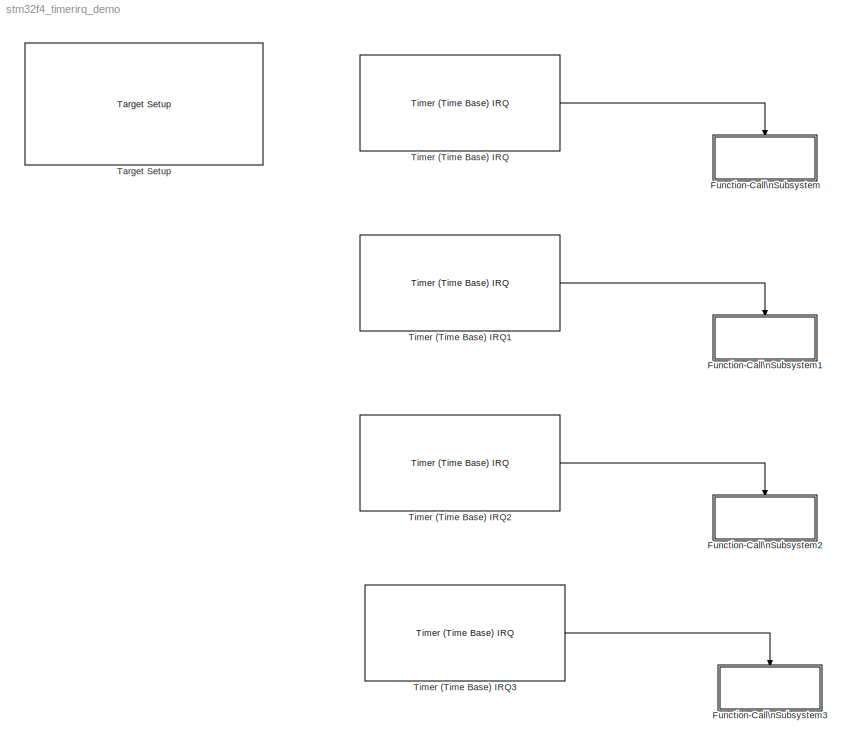
MODEL stm32f4_timerirq_demo
KIND model
CONFIG PreLoadFcn = waijung.modelPreload; % Required for working with Waijung Blockset. Do not remove.
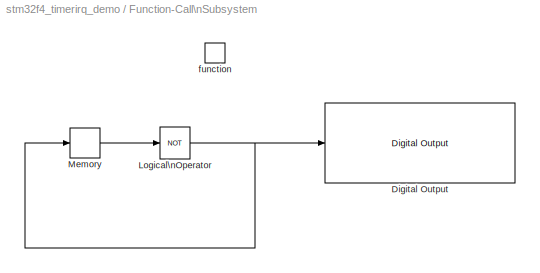
BLOCK [SubSystem] Function-Call\nSubsystem
  FunctionWithSeparateData = off
  MaskHideContents = off
  MinAlgLoopOccurrences = off
  Opaque = off
  Ports = [0, 0, 0, 1]
  PropExecContextOutsideSubsystem = off
  RTWSystemCode = Auto
  RequestExecContextInheritance = off
  TreatAsAtomicUnit = on
BLOCK [Reference] Function-Call\nSubsystem/Digital Output  REF=stm32f4_io_lib/Digital Output
  Ports = [1]
  SourceBlock = stm32f4_io_lib/Digital Output
  SourceType = stm32f4_digital_output
  bitbandingstr = \n#define FunctionCallSubsystemDigitalOutput_D12 Peripheral_BB(GPIOD->ODR, 12)  /* Output pin */
  blockid = FunctionCallSubsystemDigitalOutput
  cinputportlabel = In1, In2
  coutputportlabel = 0
  enablecustomportlabel = off
  globalinit = off
  pinstr = GPIO_Pin_12
  port = D
  porttype = Push Pull
  porttypestr = PP
  sampletime = -1
  sampletimestr = -1
  speed = 100
  use_bitband = on
  use_pin0 = off
  use_pin1 = off
  use_pin10 = off
  use_pin11 = off
  use_pin12 = on
  use_pin13 = off
  use_pin14 = off
  use_pin15 = off
  use_pin2 = off
  use_pin3 = off
  use_pin4 = off
  use_pin5 = off
  use_pin6 = off
  use_pin7 = off
  use_pin8 = off
  use_pin9 = off
  usedpinarray = [0  0  0  0  0  0  0  0  0  0  0  0  1  0  0  0]
BLOCK [Logic] Function-Call\nSubsystem/Logical\nOperator
  AllPortsSameDT = off
  LogicDataType = fixdt(0, 8)
  Operator = NOT
  OutDataTypeMode = boolean
  OutDataTypeStr = boolean
  Ports = [1, 1]
BLOCK [Memory] Function-Call\nSubsystem/Memory
  InheritSampleTime = on
BLOCK [TriggerPort] Function-Call\nSubsystem/function
  Ports = []
  StatesWhenEnabling = held
  TriggerType = function-call
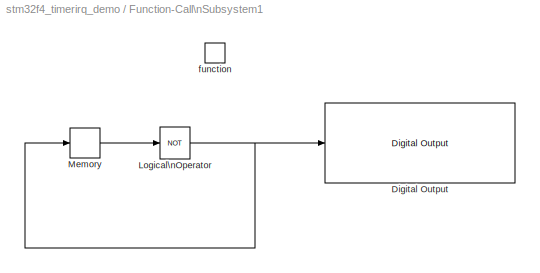
BLOCK [SubSystem] Function-Call\nSubsystem1
  FunctionWithSeparateData = off
  MaskHideContents = off
  MinAlgLoopOccurrences = off
  Opaque = off
  Ports = [0, 0, 0, 1]
  PropExecContextOutsideSubsystem = off
  RTWSystemCode = Auto
  RequestExecContextInheritance = off
  TreatAsAtomicUnit = on
BLOCK [Reference] Function-Call\nSubsystem1/Digital Output  REF=stm32f4_io_lib/Digital Output
  Ports = [1]
  SourceBlock = stm32f4_io_lib/Digital Output
  SourceType = stm32f4_digital_output
  bitbandingstr = \n#define FunctionCallSubsystem1DigitalOutput_D13 Peripheral_BB(GPIOD->ODR, 13)  /* Output pin */
  blockid = FunctionCallSubsystem1DigitalOutput
  cinputportlabel = In1, In2
  coutputportlabel = 0
  enablecustomportlabel = off
  globalinit = off
  pinstr = GPIO_Pin_13
  port = D
  porttype = Push Pull
  porttypestr = PP
  sampletime = -1
  sampletimestr = -1
  speed = 100
  use_bitband = on
  use_pin0 = off
  use_pin1 = off
  use_pin10 = off
  use_pin11 = off
  use_pin12 = off
  use_pin13 = on
  use_pin14 = off
  use_pin15 = off
  use_pin2 = off
  use_pin3 = off
  use_pin4 = off
  use_pin5 = off
  use_pin6 = off
  use_pin7 = off
  use_pin8 = off
  use_pin9 = off
  usedpinarray = [0  0  0  0  0  0  0  0  0  0  0  0  0  1  0  0]
BLOCK [Logic] Function-Call\nSubsystem1/Logical\nOperator
  AllPortsSameDT = off
  LogicDataType = fixdt(0, 8)
  Operator = NOT
  OutDataTypeMode = boolean
  OutDataTypeStr = boolean
  Ports = [1, 1]
BLOCK [Memory] Function-Call\nSubsystem1/Memory
  InheritSampleTime = on
BLOCK [TriggerPort] Function-Call\nSubsystem1/function
  Ports = []
  StatesWhenEnabling = held
  TriggerType = function-call
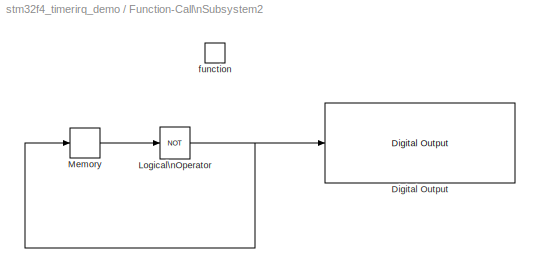
BLOCK [SubSystem] Function-Call\nSubsystem2
  FunctionWithSeparateData = off
  MaskHideContents = off
  MinAlgLoopOccurrences = off
  Opaque = off
  Ports = [0, 0, 0, 1]
  PropExecContextOutsideSubsystem = off
  RTWSystemCode = Auto
  RequestExecContextInheritance = off
  TreatAsAtomicUnit = on
BLOCK [Reference] Function-Call\nSubsystem2/Digital Output  REF=stm32f4_io_lib/Digital Output
  Ports = [1]
  SourceBlock = stm32f4_io_lib/Digital Output
  SourceType = stm32f4_digital_output
  bitbandingstr = \n#define FunctionCallSubsystem2DigitalOutput_D14 Peripheral_BB(GPIOD->ODR, 14)  /* Output pin */
  blockid = FunctionCallSubsystem2DigitalOutput
  cinputportlabel = In1, In2
  coutputportlabel = 0
  enablecustomportlabel = off
  globalinit = off
  pinstr = GPIO_Pin_14
  port = D
  porttype = Push Pull
  porttypestr = PP
  sampletime = -1
  sampletimestr = -1
  speed = 100
  use_bitband = on
  use_pin0 = off
  use_pin1 = off
  use_pin10 = off
  use_pin11 = off
  use_pin12 = off
  use_pin13 = off
  use_pin14 = on
  use_pin15 = off
  use_pin2 = off
  use_pin3 = off
  use_pin4 = off
  use_pin5 = off
  use_pin6 = off
  use_pin7 = off
  use_pin8 = off
  use_pin9 = off
  usedpinarray = [0  0  0  0  0  0  0  0  0  0  0  0  0  0  1  0]
BLOCK [Logic] Function-Call\nSubsystem2/Logical\nOperator
  AllPortsSameDT = off
  LogicDataType = fixdt(0, 8)
  Operator = NOT
  OutDataTypeMode = boolean
  OutDataTypeStr = boolean
  Ports = [1, 1]
BLOCK [Memory] Function-Call\nSubsystem2/Memory
  InheritSampleTime = on
BLOCK [TriggerPort] Function-Call\nSubsystem2/function
  Ports = []
  StatesWhenEnabling = held
  TriggerType = function-call
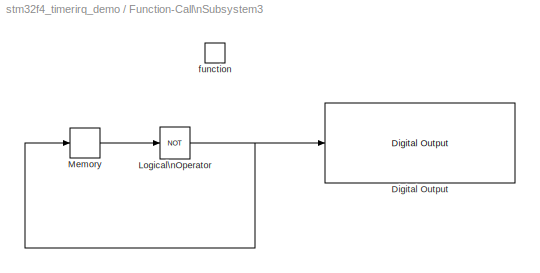
BLOCK [SubSystem] Function-Call\nSubsystem3
  FunctionWithSeparateData = off
  MaskHideContents = off
  MinAlgLoopOccurrences = off
  Opaque = off
  Ports = [0, 0, 0, 1]
  PropExecContextOutsideSubsystem = off
  RTWSystemCode = Auto
  RequestExecContextInheritance = off
  TreatAsAtomicUnit = on
BLOCK [Reference] Function-Call\nSubsystem3/Digital Output  REF=stm32f4_io_lib/Digital Output
  Ports = [1]
  SourceBlock = stm32f4_io_lib/Digital Output
  SourceType = stm32f4_digital_output
  bitbandingstr = \n#define FunctionCallSubsystem3DigitalOutput_D15 Peripheral_BB(GPIOD->ODR, 15)  /* Output pin */
  blockid = FunctionCallSubsystem3DigitalOutput
  cinputportlabel = In1, In2
  coutputportlabel = 0
  enablecustomportlabel = off
  globalinit = off
  pinstr = GPIO_Pin_15
  port = D
  porttype = Push Pull
  porttypestr = PP
  sampletime = -1
  sampletimestr = -1
  speed = 100
  use_bitband = on
  use_pin0 = off
  use_pin1 = off
  use_pin10 = off
  use_pin11 = off
  use_pin12 = off
  use_pin13 = off
  use_pin14 = off
  use_pin15 = on
  use_pin2 = off
  use_pin3 = off
  use_pin4 = off
  use_pin5 = off
  use_pin6 = off
  use_pin7 = off
  use_pin8 = off
  use_pin9 = off
  usedpinarray = [0  0  0  0  0  0  0  0  0  0  0  0  0  0  0  1]
BLOCK [Logic] Function-Call\nSubsystem3/Logical\nOperator
  AllPortsSameDT = off
  LogicDataType = fixdt(0, 8)
  Operator = NOT
  OutDataTypeMode = boolean
  OutDataTypeStr = boolean
  Ports = [1, 1]
BLOCK [Memory] Function-Call\nSubsystem3/Memory
  InheritSampleTime = on
BLOCK [TriggerPort] Function-Call\nSubsystem3/function
  Ports = []
  StatesWhenEnabling = held
  TriggerType = function-call
BLOCK [Reference] Target Setup  REF=stm32f4_device_config_lib/Target Setup
  Ports = []
  Priority = 100
  SourceBlock = stm32f4_device_config_lib/Target Setup
  SourceType = stm32f4_target_setup
  assemblercontrolstr = $(patsubst %, -I%, .) -mcpu=cortex-m4 -mthumb -mthumb-interwork -mfloat-abi=hard -mfpu=fpv4-sp-d16 -ffast-math -Wall -Wextra -Ofast -Wa,-amhls=$(<:.s=.lst) -D__STACK_SIZE=$(STACK_SIZE) -D__HEAP_SIZE=$(HEAP_SIZE)
  blockid = TargetSetup
  clockconfig = HSEOSC-8MHz
  compiler = GNU ARM
  compilercontrolstr = $(patsubst %, -I%, .) -mcpu=cortex-m4 -mthumb -mthumb-interwork -mfloat-abi=hard -mfpu=fpv4-sp-d16 -ffast-math -Wall -Wextra -Ofast
  editctrlstr = on
  enableautocompiledownload = on
  execprofile = None
  flashlength = 1024k
  flashorigin = 0x8000000
  fullchiperase = off
  hclk = 168000000
  heapsize = 0x200
  hseval = 8000000
  lastprofileruart = 1
  linkercontrolstr = -T$(LD_SCRIPT) -g -Wl,-Map=$(MAP),--cref,--no-warn-mismatch -mcpu=cortex-m4 -mthumb -mthumb-interwork -mfloat-abi=hard -mfpu=fpv4-sp-d16 -specs=nosys.specs
  manualsetsampletime = off
  mcu = STM32F417IG (LQFP176)
  mcustr = STM32F417IG
  previous_compiler = GNU ARM
  profilerbaud = 115200
  profilerinitstr = 0.01,168000000,1680000,115200,0
  profilertxpin = D8
  profileruart = 1
  programmerinterface = ST-Link
  ramlength = 128k
  ramorigin = 0x20000000
  runafterdownload = on
  sampletime = 0.01
  showmemoryconfiguration = off
  stacksize = 0x400
  system_stm32f4xx_c_path = <path>
  systickreloadvalue = 1680000
  useextram = off
BLOCK [Reference] Timer (Time Base) IRQ  REF=stm32f4_tim_lib/Timer (Time Base) IRQ
  Ports = [0, 1]
  SourceBlock = stm32f4_tim_lib/Timer (Time Base) IRQ
  SourceType = stm32f4_bttbisr
  autoreload = 65521
  blockid = TimerTimeBaseIRQ
  configmode = Basic
  irqpreemptionpriority = 0
  irqpreemptionpriority_g0 = 0
  irqpreemptionpriority_g1 = 0
  irqpreemptionpriority_g2 = 0
  irqpreemptionpriority_g3 = 4
  irqpreemptionpriority_g4 = 0
  irqsubpriority = 0
  irqsubpriority_g0 = 0
  irqsubpriority_g1 = 0
  irqsubpriority_g2 = 0
  irqsubpriority_g3 = 0
  irqsubpriority_g4 = 0
  nvicprioritygroup = 4
  prescaler = 1281
  sampletime = 1
  timer = 2
BLOCK [Reference] Timer (Time Base) IRQ1  REF=stm32f4_tim_lib/Timer (Time Base) IRQ
  Ports = [0, 1]
  SourceBlock = stm32f4_tim_lib/Timer (Time Base) IRQ
  SourceType = stm32f4_bttbisr
  autoreload = 65521
  blockid = TimerTimeBaseIRQ1
  configmode = Basic
  irqpreemptionpriority = 0
  irqpreemptionpriority_g0 = 0
  irqpreemptionpriority_g1 = 0
  irqpreemptionpriority_g2 = 0
  irqpreemptionpriority_g3 = 4
  irqpreemptionpriority_g4 = 0
  irqsubpriority = 0
  irqsubpriority_g0 = 0
  irqsubpriority_g1 = 0
  irqsubpriority_g2 = 0
  irqsubpriority_g3 = 0
  irqsubpriority_g4 = 0
  nvicprioritygroup = 4
  prescaler = 2563
  sampletime = 2
  timer = 3
BLOCK [Reference] Timer (Time Base) IRQ2  REF=stm32f4_tim_lib/Timer (Time Base) IRQ
  Ports = [0, 1]
  SourceBlock = stm32f4_tim_lib/Timer (Time Base) IRQ
  SourceType = stm32f4_bttbisr
  autoreload = 65521
  blockid = TimerTimeBaseIRQ2
  configmode = Basic
  irqpreemptionpriority = 0
  irqpreemptionpriority_g0 = 0
  irqpreemptionpriority_g1 = 0
  irqpreemptionpriority_g2 = 0
  irqpreemptionpriority_g3 = 4
  irqpreemptionpriority_g4 = 0
  irqsubpriority = 0
  irqsubpriority_g0 = 0
  irqsubpriority_g1 = 0
  irqsubpriority_g2 = 0
  irqsubpriority_g3 = 0
  irqsubpriority_g4 = 0
  nvicprioritygroup = 4
  prescaler = 3845
  sampletime = 3
  timer = 4
BLOCK [Reference] Timer (Time Base) IRQ3  REF=stm32f4_tim_lib/Timer (Time Base) IRQ
  Ports = [0, 1]
  SourceBlock = stm32f4_tim_lib/Timer (Time Base) IRQ
  SourceType = stm32f4_bttbisr
  autoreload = 65534
  blockid = TimerTimeBaseIRQ3
  configmode = Basic
  irqpreemptionpriority = 0
  irqpreemptionpriority_g0 = 0
  irqpreemptionpriority_g1 = 0
  irqpreemptionpriority_g2 = 0
  irqpreemptionpriority_g3 = 4
  irqpreemptionpriority_g4 = 0
  irqsubpriority = 0
  irqsubpriority_g0 = 0
  irqsubpriority_g1 = 0
  irqsubpriority_g2 = 0
  irqsubpriority_g3 = 0
  irqsubpriority_g4 = 0
  nvicprioritygroup = 4
  prescaler = 5126
  sampletime = 4
  timer = 5
NET Function-Call\nSubsystem/Logical\nOperator:1 -> Function-Call\nSubsystem/Digital Output:1, Function-Call\nSubsystem/Memory:1
LINE Function-Call\nSubsystem/Memory:1 -> Function-Call\nSubsystem/Logical\nOperator:1
NET Function-Call\nSubsystem1/Logical\nOperator:1 -> Function-Call\nSubsystem1/Digital Output:1, Function-Call\nSubsystem1/Memory:1
LINE Function-Call\nSubsystem1/Memory:1 -> Function-Call\nSubsystem1/Logical\nOperator:1
NET Function-Call\nSubsystem2/Logical\nOperator:1 -> Function-Call\nSubsystem2/Digital Output:1, Function-Call\nSubsystem2/Memory:1
LINE Function-Call\nSubsystem2/Memory:1 -> Function-Call\nSubsystem2/Logical\nOperator:1
NET Function-Call\nSubsystem3/Logical\nOperator:1 -> Function-Call\nSubsystem3/Digital Output:1, Function-Call\nSubsystem3/Memory:1
LINE Function-Call\nSubsystem3/Memory:1 -> Function-Call\nSubsystem3/Logical\nOperator:1
LINE Timer (Time Base) IRQ1:1 -> Function-Call\nSubsystem1:trigger
LINE Timer (Time Base) IRQ2:1 -> Function-Call\nSubsystem2:trigger
LINE Timer (Time Base) IRQ3:1 -> Function-Call\nSubsystem3:trigger
LINE Timer (Time Base) IRQ:1 -> Function-Call\nSubsystem:trigger
note: NET lines group one-source signal fan-out (src -> all destinations, sorted); 1:1 wires keep LINE
note: 1 file-system path scrubbed to <path> (not preserved elsewhere — flat text is the only slx artifact)
